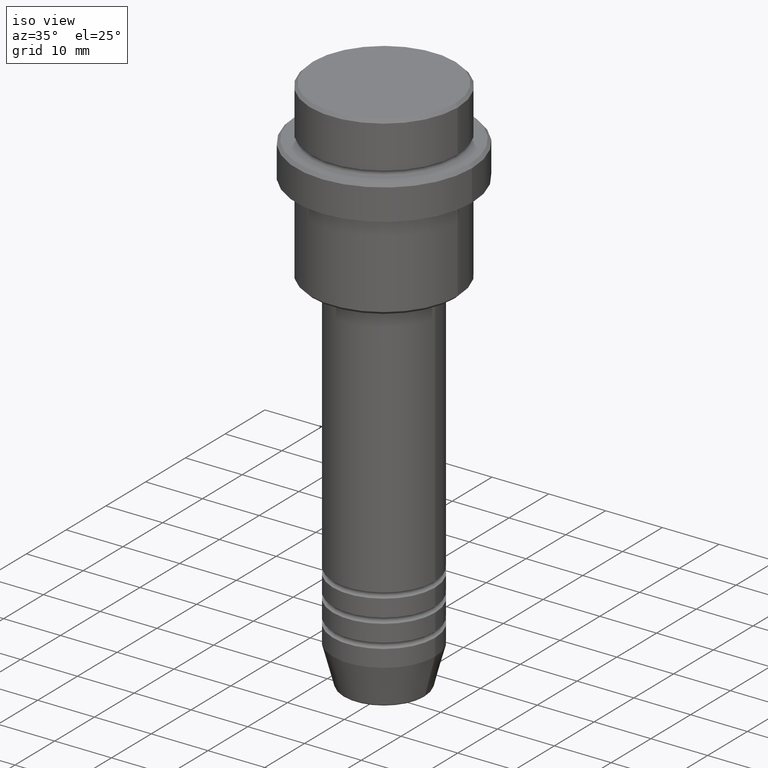
[diagram: clean part render]
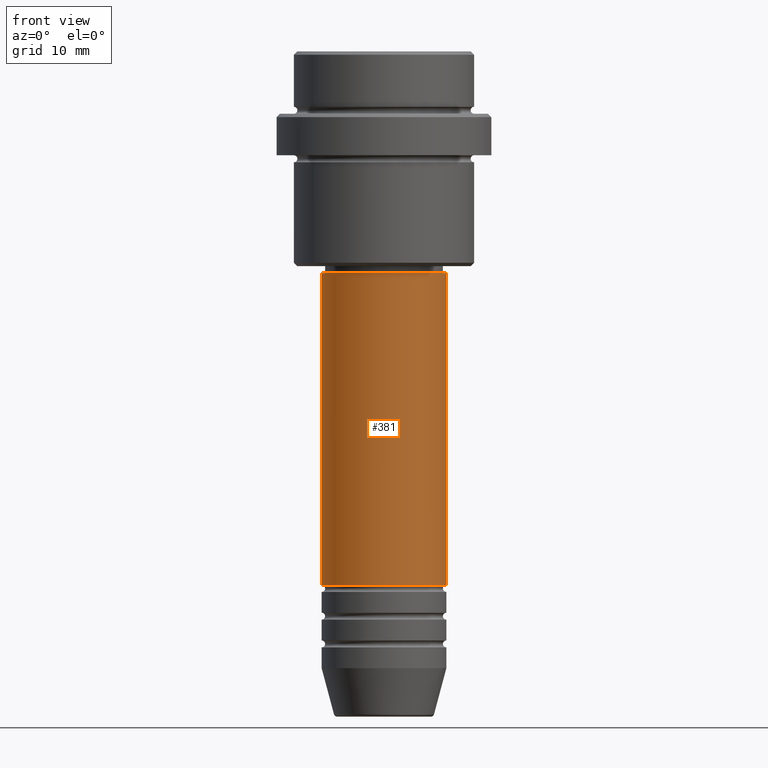
[diagram: tour spotlight — one face highlighted and labeled with its STEP entity id]
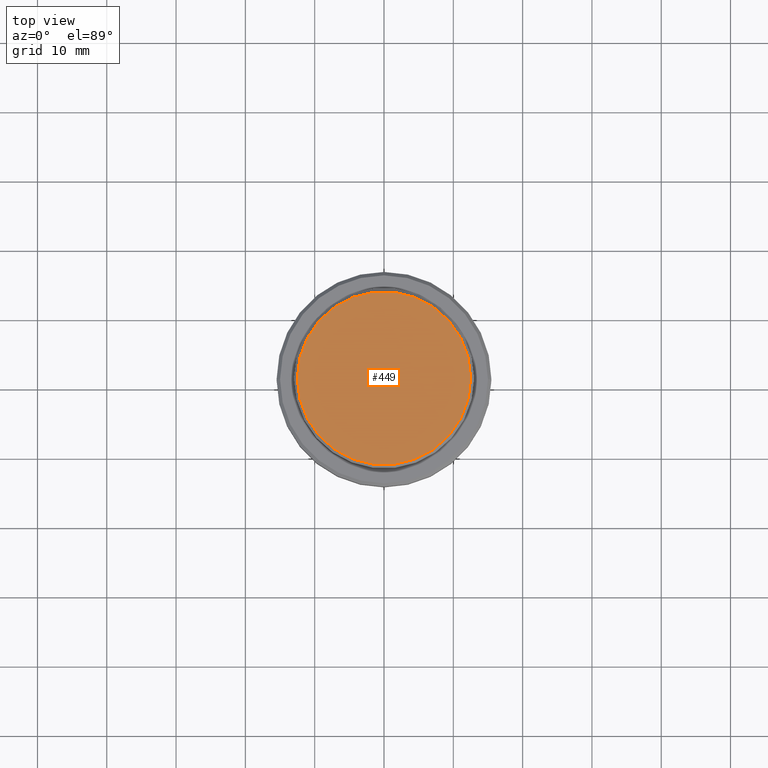
[diagram: tour spotlight — one face highlighted and labeled with its STEP entity id]
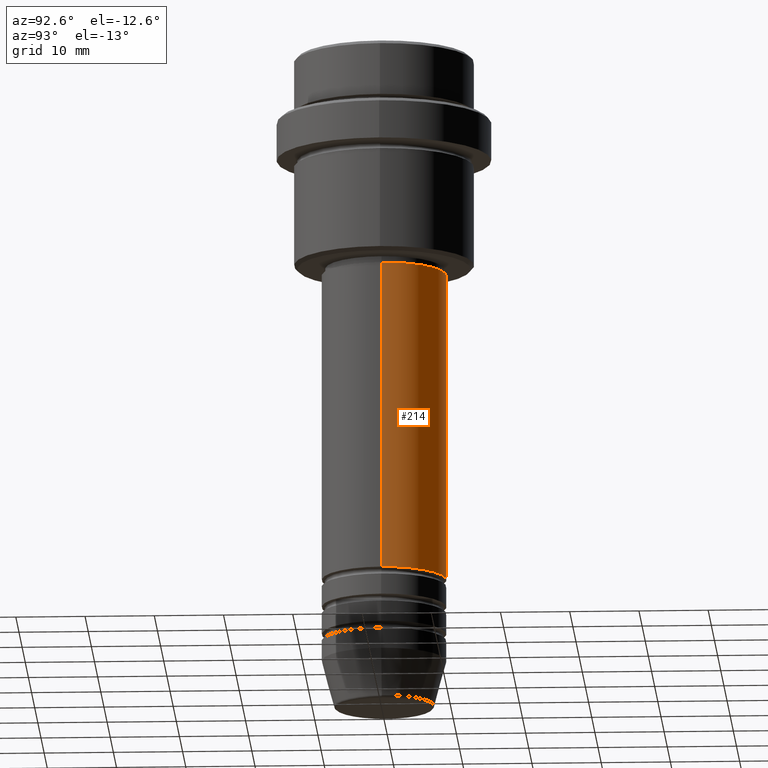
[diagram: tour spotlight — one face highlighted and labeled with its STEP entity id]
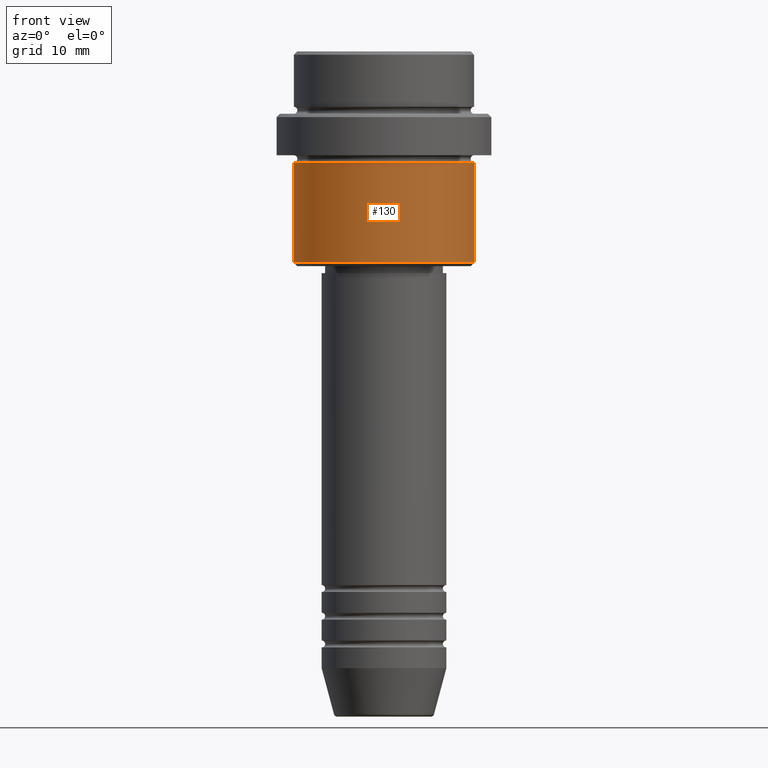
[diagram: tour spotlight — one face highlighted and labeled with its STEP entity id]
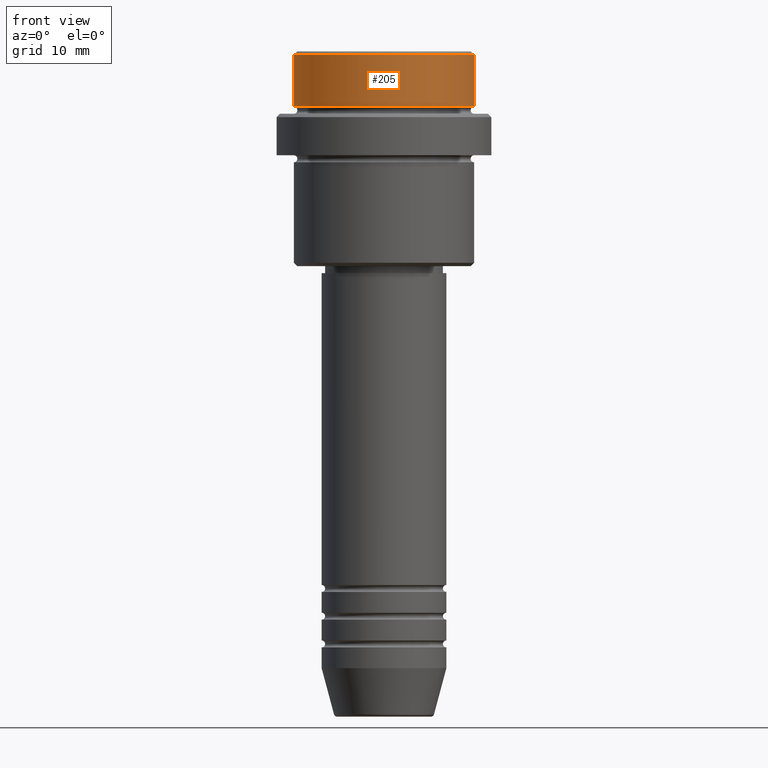
[diagram: tour spotlight — one face highlighted and labeled with its STEP entity id]
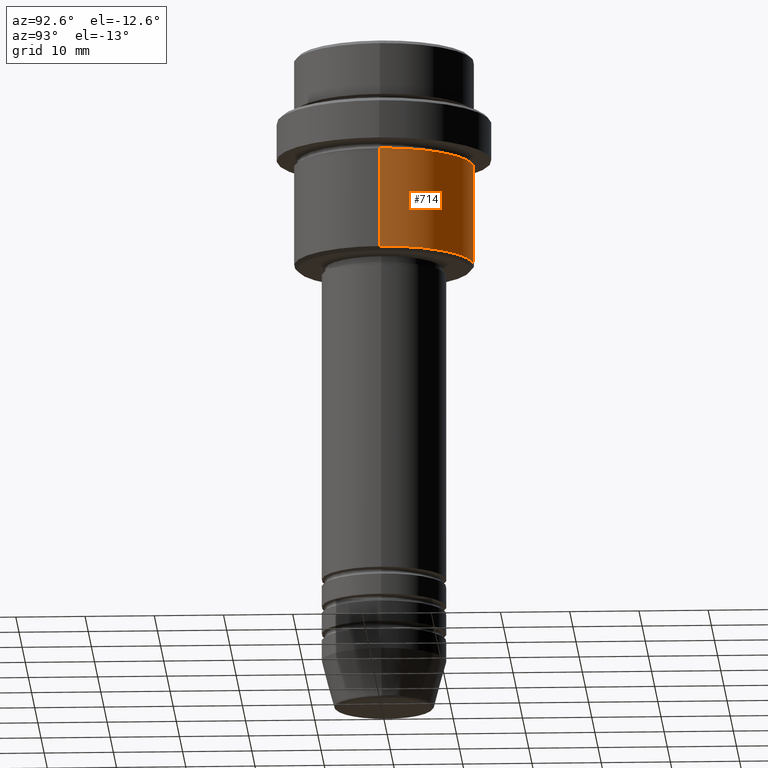
[diagram: tour spotlight — one face highlighted and labeled with its STEP entity id]
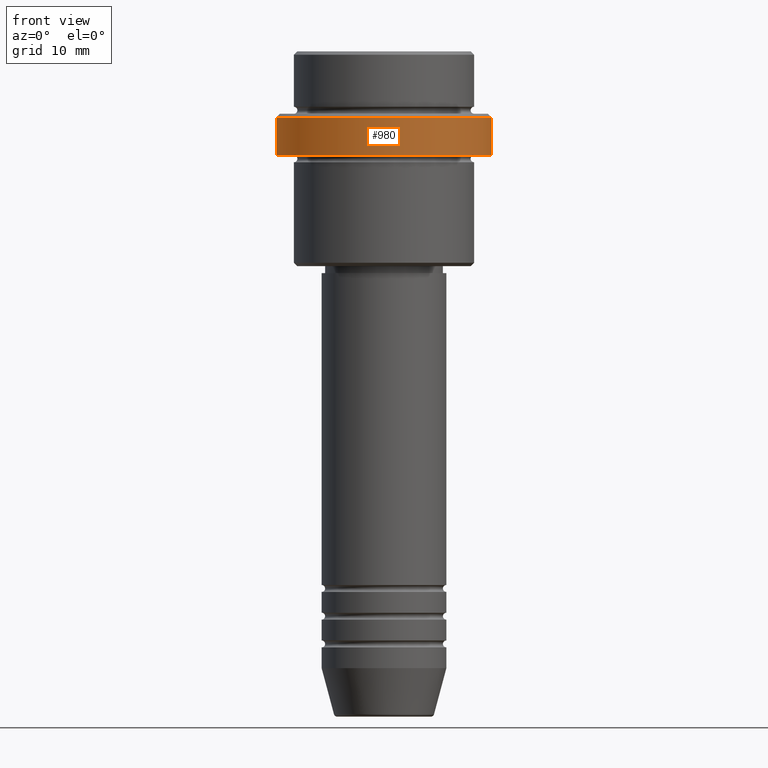
[diagram: tour spotlight — one face highlighted and labeled with its STEP entity id]
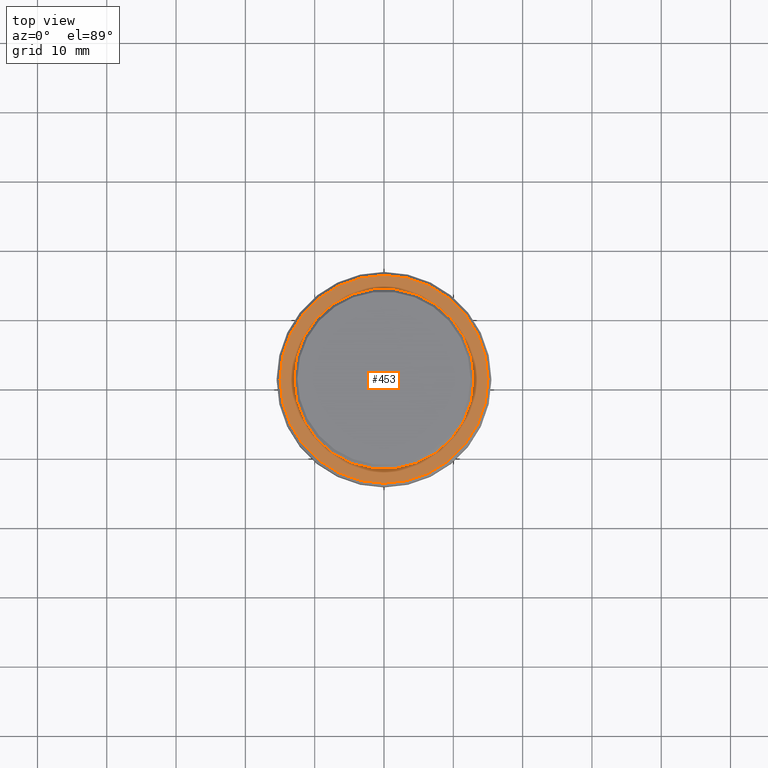
[diagram: tour spotlight — one face highlighted and labeled with its STEP entity id]
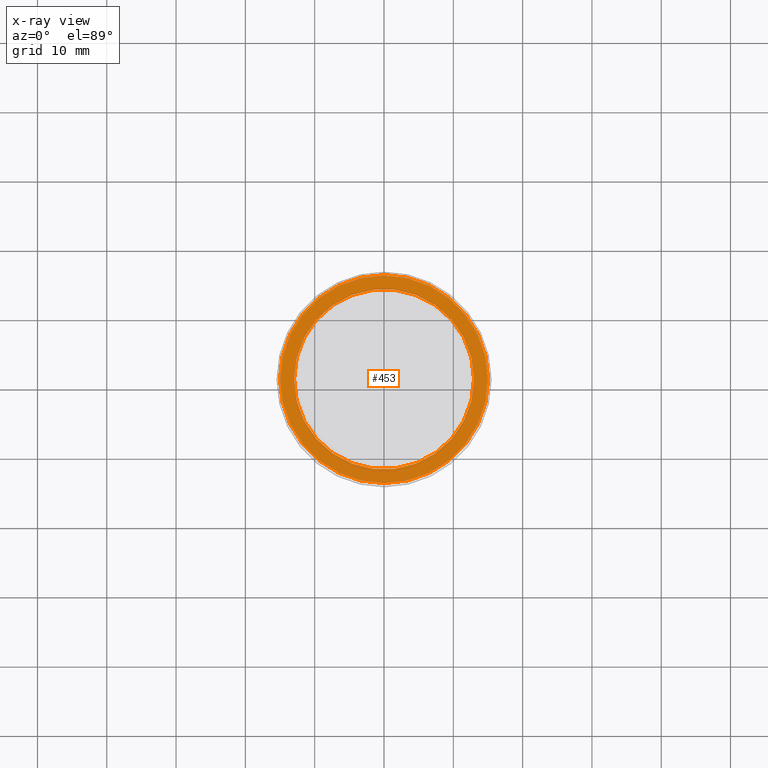
[diagram: x-ray of the same camera — body ghosted, this tour face saturated]
A machine part: a face-by-face anatomy tour. The part has 52 B-rep faces; the first image is the clean iso view, then the 8 largest visible faces are spotlighted one at a time (largest first), each with its STEP entity span.

Face 1 — front view, entity #381. In plain terms, the highlighted cylindrical surface (partial cylindrical patch) has radius 9 mm, axis along (-0, -0, 1).
Definition (entity closure, byte-faithful):
#68 = EDGE_LOOP ( 'NONE', ( #1381, #1315, #971, #1289 ) ) ;
#89 = CARTESIAN_POINT ( 'NONE',  ( -9.000000000000000000, 1.102182119232617714E-15, -76.99999999999987210 ) ) ;
#132 = DIRECTION ( 'NONE',  ( -0.000000000000000000, -0.000000000000000000, 1.000000000000000000 ) ) ;
#173 = EDGE_CURVE ( 'NONE', #368, #628, #1210, .T. ) ;
#186 = VECTOR ( 'NONE', #825, 1000.000000000000000 ) ;
#276 = CARTESIAN_POINT ( 'NONE',  ( 9.000000000000001776, 0.000000000000000000, 0.000000000000000000 ) ) ;
#363 = DIRECTION ( 'NONE',  ( -0.000000000000000000, -0.000000000000000000, 1.000000000000000000 ) ) ;
#368 = VERTEX_POINT ( 'NONE', #89 ) ;
#370 = EDGE_CURVE ( 'NONE', #554, #953, #1363, .T. ) ;
#381 = ADVANCED_FACE ( 'NONE', ( #724 ), #939, .T. ) ;
#404 = DIRECTION ( 'NONE',  ( -0.000000000000000000, -0.000000000000000000, 1.000000000000000000 ) ) ;
#465 = DIRECTION ( 'NONE',  ( -0.000000000000000000, -0.000000000000000000, 1.000000000000000000 ) ) ;
#473 = CARTESIAN_POINT ( 'NONE',  ( 0.000000000000000000, 0.000000000000000000, -76.99999999999987210 ) ) ;
#524 = CIRCLE ( 'NONE', #1110, 9.000000000000000000 ) ;
#554 = VERTEX_POINT ( 'NONE', #1016 ) ;
#588 = AXIS2_PLACEMENT_3D ( 'NONE', #1349, #465, #916 ) ;
#628 = VERTEX_POINT ( 'NONE', #1342 ) ;
#652 = CARTESIAN_POINT ( 'NONE',  ( -9.000000000000001776, 1.102182119232617911E-15, 0.000000000000000000 ) ) ;
#693 = CARTESIAN_POINT ( 'NONE',  ( 0.000000000000000000, 0.000000000000000000, 0.000000000000000000 ) ) ;
#715 = DIRECTION ( 'NONE',  ( 1.000000000000000000, 0.000000000000000000, 0.000000000000000000 ) ) ;
#724 = FACE_OUTER_BOUND ( 'NONE', #68, .T. ) ;
#778 = DIRECTION ( 'NONE',  ( 1.000000000000000000, 0.000000000000000000, 0.000000000000000000 ) ) ;
#825 = DIRECTION ( 'NONE',  ( -0.000000000000000000, -0.000000000000000000, 1.000000000000000000 ) ) ;
#916 = DIRECTION ( 'NONE',  ( 1.000000000000000000, 0.000000000000000000, 0.000000000000000000 ) ) ;
#918 = VECTOR ( 'NONE', #404, 1000.000000000000000 ) ;
#939 = CYLINDRICAL_SURFACE ( 'NONE', #986, 9.000000000000001776 ) ;
#953 = VERTEX_POINT ( 'NONE', #1098 ) ;
#971 = ORIENTED_EDGE ( 'NONE', *, *, #370, .T. ) ;
#986 = AXIS2_PLACEMENT_3D ( 'NONE', #693, #363, #715 ) ;
#1016 = CARTESIAN_POINT ( 'NONE',  ( 9.000000000000000000, 0.000000000000000000, -76.99999999999987210 ) ) ;
#1071 = EDGE_CURVE ( 'NONE', #368, #554, #524, .T. ) ;
#1098 = CARTESIAN_POINT ( 'NONE',  ( 9.000000000000001776, 0.000000000000000000, -31.99999999999997868 ) ) ;
#1109 = EDGE_CURVE ( 'NONE', #628, #953, #1222, .T. ) ;
#1110 = AXIS2_PLACEMENT_3D ( 'NONE', #473, #132, #778 ) ;
#1210 = LINE ( 'NONE', #652, #918 ) ;
#1222 = CIRCLE ( 'NONE', #588, 9.000000000000001776 ) ;
#1289 = ORIENTED_EDGE ( 'NONE', *, *, #1109, .F. ) ;
#1315 = ORIENTED_EDGE ( 'NONE', *, *, #1071, .T. ) ;
#1342 = CARTESIAN_POINT ( 'NONE',  ( -9.000000000000001776, 1.102182119232617911E-15, -31.99999999999997868 ) ) ;
#1349 = CARTESIAN_POINT ( 'NONE',  ( 0.000000000000000000, 0.000000000000000000, -31.99999999999997868 ) ) ;
#1363 = LINE ( 'NONE', #276, #186 ) ;
#1381 = ORIENTED_EDGE ( 'NONE', *, *, #173, .F. ) ;

Face 2 — top view, entity #449. In plain terms, the highlighted planar face has unit normal (0, -0, 1).
Definition (entity closure, byte-faithful):
#44 = ORIENTED_EDGE ( 'NONE', *, *, #1309, .T. ) ;
#48 = CARTESIAN_POINT ( 'NONE',  ( 0.000000000000000000, 0.000000000000000000, 0.000000000000000000 ) ) ;
#95 = AXIS2_PLACEMENT_3D ( 'NONE', #48, #391, #806 ) ;
#101 = PLANE ( 'NONE',  #95 ) ;
#126 = EDGE_CURVE ( 'NONE', #597, #198, #823, .T. ) ;
#190 = DIRECTION ( 'NONE',  ( -0.000000000000000000, -0.000000000000000000, 1.000000000000000000 ) ) ;
#198 = VERTEX_POINT ( 'NONE', #1416 ) ;
#202 = DIRECTION ( 'NONE',  ( 1.000000000000000000, 0.000000000000000000, 0.000000000000000000 ) ) ;
#327 = CARTESIAN_POINT ( 'NONE',  ( 0.000000000000000000, 0.000000000000000000, 0.000000000000000000 ) ) ;
#391 = DIRECTION ( 'NONE',  ( 0.000000000000000000, -0.000000000000000000, 1.000000000000000000 ) ) ;
#428 = DIRECTION ( 'NONE',  ( -0.000000000000000000, -0.000000000000000000, 1.000000000000000000 ) ) ;
#449 = ADVANCED_FACE ( 'NONE', ( #1393 ), #101, .T. ) ;
#536 = DIRECTION ( 'NONE',  ( 1.000000000000000000, 0.000000000000000000, 0.000000000000000000 ) ) ;
#562 = AXIS2_PLACEMENT_3D ( 'NONE', #844, #190, #202 ) ;
#590 = CIRCLE ( 'NONE', #974, 12.50000000000001243 ) ;
#597 = VERTEX_POINT ( 'NONE', #769 ) ;
#769 = CARTESIAN_POINT ( 'NONE',  ( -12.50000000000001243, 0.000000000000000000, 0.000000000000000000 ) ) ;
#806 = DIRECTION ( 'NONE',  ( 1.000000000000000000, 0.000000000000000000, 0.000000000000000000 ) ) ;
#823 = CIRCLE ( 'NONE', #562, 12.50000000000001243 ) ;
#844 = CARTESIAN_POINT ( 'NONE',  ( 0.000000000000000000, 0.000000000000000000, 0.000000000000000000 ) ) ;
#974 = AXIS2_PLACEMENT_3D ( 'NONE', #327, #428, #536 ) ;
#1200 = ORIENTED_EDGE ( 'NONE', *, *, #126, .T. ) ;
#1207 = EDGE_LOOP ( 'NONE', ( #1200, #44 ) ) ;
#1309 = EDGE_CURVE ( 'NONE', #198, #597, #590, .T. ) ;
#1393 = FACE_OUTER_BOUND ( 'NONE', #1207, .T. ) ;
#1416 = CARTESIAN_POINT ( 'NONE',  ( 12.50000000000001243, 1.561424668912876097E-15, 0.000000000000000000 ) ) ;

Face 3 — auxiliary view, entity #214. In plain terms, the highlighted cylindrical surface (partial cylindrical patch) has radius 9 mm, axis along (-0, -0, 1).
Definition (entity closure, byte-faithful):
#22 = CARTESIAN_POINT ( 'NONE',  ( 0.000000000000000000, 0.000000000000000000, -76.99999999999987210 ) ) ;
#89 = CARTESIAN_POINT ( 'NONE',  ( -9.000000000000000000, 1.102182119232617714E-15, -76.99999999999987210 ) ) ;
#103 = CIRCLE ( 'NONE', #123, 9.000000000000000000 ) ;
#123 = AXIS2_PLACEMENT_3D ( 'NONE', #22, #305, #741 ) ;
#124 = ORIENTED_EDGE ( 'NONE', *, *, #434, .F. ) ;
#151 = ORIENTED_EDGE ( 'NONE', *, *, #893, .T. ) ;
#173 = EDGE_CURVE ( 'NONE', #368, #628, #1210, .T. ) ;
#186 = VECTOR ( 'NONE', #825, 1000.000000000000000 ) ;
#214 = ADVANCED_FACE ( 'NONE', ( #750 ), #1198, .T. ) ;
#276 = CARTESIAN_POINT ( 'NONE',  ( 9.000000000000001776, 0.000000000000000000, 0.000000000000000000 ) ) ;
#305 = DIRECTION ( 'NONE',  ( -0.000000000000000000, -0.000000000000000000, 1.000000000000000000 ) ) ;
#368 = VERTEX_POINT ( 'NONE', #89 ) ;
#370 = EDGE_CURVE ( 'NONE', #554, #953, #1363, .T. ) ;
#387 = DIRECTION ( 'NONE',  ( 1.000000000000000000, 0.000000000000000000, 0.000000000000000000 ) ) ;
#404 = DIRECTION ( 'NONE',  ( -0.000000000000000000, -0.000000000000000000, 1.000000000000000000 ) ) ;
#421 = DIRECTION ( 'NONE',  ( -0.000000000000000000, -0.000000000000000000, 1.000000000000000000 ) ) ;
#434 = EDGE_CURVE ( 'NONE', #953, #628, #1080, .T. ) ;
#474 = AXIS2_PLACEMENT_3D ( 'NONE', #646, #421, #559 ) ;
#554 = VERTEX_POINT ( 'NONE', #1016 ) ;
#559 = DIRECTION ( 'NONE',  ( 1.000000000000000000, 0.000000000000000000, 0.000000000000000000 ) ) ;
#607 = CARTESIAN_POINT ( 'NONE',  ( 0.000000000000000000, 0.000000000000000000, -31.99999999999997868 ) ) ;
#628 = VERTEX_POINT ( 'NONE', #1342 ) ;
#646 = CARTESIAN_POINT ( 'NONE',  ( 0.000000000000000000, 0.000000000000000000, 0.000000000000000000 ) ) ;
#652 = CARTESIAN_POINT ( 'NONE',  ( -9.000000000000001776, 1.102182119232617911E-15, 0.000000000000000000 ) ) ;
#741 = DIRECTION ( 'NONE',  ( 1.000000000000000000, 0.000000000000000000, 0.000000000000000000 ) ) ;
#750 = FACE_OUTER_BOUND ( 'NONE', #1119, .T. ) ;
#767 = AXIS2_PLACEMENT_3D ( 'NONE', #607, #1387, #387 ) ;
#825 = DIRECTION ( 'NONE',  ( -0.000000000000000000, -0.000000000000000000, 1.000000000000000000 ) ) ;
#893 = EDGE_CURVE ( 'NONE', #554, #368, #103, .T. ) ;
#918 = VECTOR ( 'NONE', #404, 1000.000000000000000 ) ;
#953 = VERTEX_POINT ( 'NONE', #1098 ) ;
#959 = ORIENTED_EDGE ( 'NONE', *, *, #370, .F. ) ;
#966 = ORIENTED_EDGE ( 'NONE', *, *, #173, .T. ) ;
#1016 = CARTESIAN_POINT ( 'NONE',  ( 9.000000000000000000, 0.000000000000000000, -76.99999999999987210 ) ) ;
#1080 = CIRCLE ( 'NONE', #767, 9.000000000000001776 ) ;
#1098 = CARTESIAN_POINT ( 'NONE',  ( 9.000000000000001776, 0.000000000000000000, -31.99999999999997868 ) ) ;
#1119 = EDGE_LOOP ( 'NONE', ( #151, #966, #124, #959 ) ) ;
#1198 = CYLINDRICAL_SURFACE ( 'NONE', #474, 9.000000000000001776 ) ;
#1210 = LINE ( 'NONE', #652, #918 ) ;
#1342 = CARTESIAN_POINT ( 'NONE',  ( -9.000000000000001776, 1.102182119232617911E-15, -31.99999999999997868 ) ) ;
#1363 = LINE ( 'NONE', #276, #186 ) ;
#1387 = DIRECTION ( 'NONE',  ( -0.000000000000000000, -0.000000000000000000, 1.000000000000000000 ) ) ;

Face 4 — front view, entity #130. In plain terms, the highlighted cylindrical surface (partial cylindrical patch) has radius 13 mm, axis along (-0, -0, 1).
Definition (entity closure, byte-faithful):
#119 = DIRECTION ( 'NONE',  ( -1.000000000000000000, 0.000000000000000000, 0.000000000000000000 ) ) ;
#130 = ADVANCED_FACE ( 'NONE', ( #626 ), #1322, .T. ) ;
#131 = DIRECTION ( 'NONE',  ( -0.000000000000000000, -0.000000000000000000, 1.000000000000000000 ) ) ;
#209 = VECTOR ( 'NONE', #336, 1000.000000000000000 ) ;
#221 = DIRECTION ( 'NONE',  ( 1.000000000000000000, 0.000000000000000000, 0.000000000000000000 ) ) ;
#225 = CARTESIAN_POINT ( 'NONE',  ( -13.00000000000000000, 1.592040838891559095E-15, 0.000000000000000000 ) ) ;
#251 = AXIS2_PLACEMENT_3D ( 'NONE', #970, #1295, #221 ) ;
#264 = CARTESIAN_POINT ( 'NONE',  ( -13.00000000000000000, 1.592040838891559095E-15, -16.00000000000000000 ) ) ;
#318 = CARTESIAN_POINT ( 'NONE',  ( 13.00000000000000000, 0.000000000000000000, -16.00000000000000000 ) ) ;
#323 = CARTESIAN_POINT ( 'NONE',  ( -13.00000000000000000, 1.592040838891559095E-15, -30.49999999999999645 ) ) ;
#336 = DIRECTION ( 'NONE',  ( -0.000000000000000000, -0.000000000000000000, 1.000000000000000000 ) ) ;
#412 = VERTEX_POINT ( 'NONE', #487 ) ;
#487 = CARTESIAN_POINT ( 'NONE',  ( 13.00000000000000000, 0.000000000000000000, -30.49999999999999645 ) ) ;
#526 = CARTESIAN_POINT ( 'NONE',  ( 0.000000000000000000, 0.000000000000000000, -30.49999999999999645 ) ) ;
#598 = ORIENTED_EDGE ( 'NONE', *, *, #967, .F. ) ;
#626 = FACE_OUTER_BOUND ( 'NONE', #985, .T. ) ;
#638 = CIRCLE ( 'NONE', #1015, 13.00000000000000000 ) ;
#705 = CIRCLE ( 'NONE', #857, 13.00000000000000000 ) ;
#775 = CARTESIAN_POINT ( 'NONE',  ( 0.000000000000000000, 0.000000000000000000, -16.00000000000000000 ) ) ;
#780 = ORIENTED_EDGE ( 'NONE', *, *, #1362, .T. ) ;
#857 = AXIS2_PLACEMENT_3D ( 'NONE', #775, #131, #1257 ) ;
#897 = VECTOR ( 'NONE', #1029, 1000.000000000000000 ) ;
#900 = CARTESIAN_POINT ( 'NONE',  ( 13.00000000000000000, 0.000000000000000000, 0.000000000000000000 ) ) ;
#936 = VERTEX_POINT ( 'NONE', #318 ) ;
#967 = EDGE_CURVE ( 'NONE', #1383, #1024, #1217, .T. ) ;
#970 = CARTESIAN_POINT ( 'NONE',  ( 0.000000000000000000, 0.000000000000000000, 0.000000000000000000 ) ) ;
#985 = EDGE_LOOP ( 'NONE', ( #598, #780, #1130, #1172 ) ) ;
#1015 = AXIS2_PLACEMENT_3D ( 'NONE', #526, #1214, #119 ) ;
#1023 = LINE ( 'NONE', #900, #897 ) ;
#1024 = VERTEX_POINT ( 'NONE', #264 ) ;
#1029 = DIRECTION ( 'NONE',  ( -0.000000000000000000, -0.000000000000000000, 1.000000000000000000 ) ) ;
#1054 = EDGE_CURVE ( 'NONE', #412, #936, #1023, .T. ) ;
#1130 = ORIENTED_EDGE ( 'NONE', *, *, #1054, .T. ) ;
#1172 = ORIENTED_EDGE ( 'NONE', *, *, #1407, .F. ) ;
#1214 = DIRECTION ( 'NONE',  ( -0.000000000000000000, -0.000000000000000000, 1.000000000000000000 ) ) ;
#1217 = LINE ( 'NONE', #225, #209 ) ;
#1257 = DIRECTION ( 'NONE',  ( 1.000000000000000000, 0.000000000000000000, 0.000000000000000000 ) ) ;
#1295 = DIRECTION ( 'NONE',  ( -0.000000000000000000, -0.000000000000000000, 1.000000000000000000 ) ) ;
#1322 = CYLINDRICAL_SURFACE ( 'NONE', #251, 13.00000000000000000 ) ;
#1362 = EDGE_CURVE ( 'NONE', #1383, #412, #638, .T. ) ;
#1383 = VERTEX_POINT ( 'NONE', #323 ) ;
#1407 = EDGE_CURVE ( 'NONE', #1024, #936, #705, .T. ) ;

Face 5 — front view, entity #205. In plain terms, the highlighted cylindrical surface (partial cylindrical patch) has radius 13 mm, axis along (-0, -0, 1).
Definition (entity closure, byte-faithful):
#11 = VECTOR ( 'NONE', #988, 1000.000000000000000 ) ;
#69 = VECTOR ( 'NONE', #885, 1000.000000000000000 ) ;
#79 = CIRCLE ( 'NONE', #873, 12.99999999999999822 ) ;
#81 = CARTESIAN_POINT ( 'NONE',  ( 12.99999999999999822, 0.000000000000000000, -0.5000000000000038858 ) ) ;
#111 = EDGE_CURVE ( 'NONE', #445, #1072, #797, .T. ) ;
#153 = LINE ( 'NONE', #573, #69 ) ;
#170 = DIRECTION ( 'NONE',  ( 1.000000000000000000, 0.000000000000000000, 0.000000000000000000 ) ) ;
#183 = CARTESIAN_POINT ( 'NONE',  ( 0.000000000000000000, 0.000000000000000000, -0.5000000000000038858 ) ) ;
#205 = ADVANCED_FACE ( 'NONE', ( #1184 ), #1088, .T. ) ;
#270 = CARTESIAN_POINT ( 'NONE',  ( 0.000000000000000000, 0.000000000000000000, -7.999999999999998224 ) ) ;
#306 = EDGE_LOOP ( 'NONE', ( #1158, #863, #1003, #1283 ) ) ;
#338 = EDGE_CURVE ( 'NONE', #1276, #1116, #79, .T. ) ;
#416 = DIRECTION ( 'NONE',  ( -0.000000000000000000, -0.000000000000000000, 1.000000000000000000 ) ) ;
#445 = VERTEX_POINT ( 'NONE', #81 ) ;
#508 = DIRECTION ( 'NONE',  ( 1.000000000000000000, 0.000000000000000000, 0.000000000000000000 ) ) ;
#523 = AXIS2_PLACEMENT_3D ( 'NONE', #979, #416, #1095 ) ;
#564 = CARTESIAN_POINT ( 'NONE',  ( -12.99999999999999822, 1.592040838891558898E-15, -0.5000000000000038858 ) ) ;
#573 = CARTESIAN_POINT ( 'NONE',  ( 12.99999999999999822, 0.000000000000000000, 0.000000000000000000 ) ) ;
#575 = EDGE_CURVE ( 'NONE', #1116, #445, #153, .T. ) ;
#613 = DIRECTION ( 'NONE',  ( 0.000000000000000000, 0.000000000000000000, -1.000000000000000000 ) ) ;
#701 = DIRECTION ( 'NONE',  ( -0.000000000000000000, -0.000000000000000000, 1.000000000000000000 ) ) ;
#797 = CIRCLE ( 'NONE', #1357, 12.99999999999999822 ) ;
#863 = ORIENTED_EDGE ( 'NONE', *, *, #338, .T. ) ;
#873 = AXIS2_PLACEMENT_3D ( 'NONE', #270, #701, #170 ) ;
#885 = DIRECTION ( 'NONE',  ( -0.000000000000000000, -0.000000000000000000, 1.000000000000000000 ) ) ;
#931 = EDGE_CURVE ( 'NONE', #1276, #1072, #983, .T. ) ;
#979 = CARTESIAN_POINT ( 'NONE',  ( 0.000000000000000000, 0.000000000000000000, 0.000000000000000000 ) ) ;
#983 = LINE ( 'NONE', #1312, #11 ) ;
#988 = DIRECTION ( 'NONE',  ( -0.000000000000000000, -0.000000000000000000, 1.000000000000000000 ) ) ;
#1003 = ORIENTED_EDGE ( 'NONE', *, *, #575, .T. ) ;
#1072 = VERTEX_POINT ( 'NONE', #564 ) ;
#1088 = CYLINDRICAL_SURFACE ( 'NONE', #523, 12.99999999999999822 ) ;
#1095 = DIRECTION ( 'NONE',  ( 1.000000000000000000, 0.000000000000000000, 0.000000000000000000 ) ) ;
#1116 = VERTEX_POINT ( 'NONE', #1251 ) ;
#1158 = ORIENTED_EDGE ( 'NONE', *, *, #931, .F. ) ;
#1184 = FACE_OUTER_BOUND ( 'NONE', #306, .T. ) ;
#1203 = CARTESIAN_POINT ( 'NONE',  ( -12.99999999999999822, 1.592040838891558898E-15, -7.999999999999998224 ) ) ;
#1251 = CARTESIAN_POINT ( 'NONE',  ( 12.99999999999999822, 0.000000000000000000, -7.999999999999998224 ) ) ;
#1276 = VERTEX_POINT ( 'NONE', #1203 ) ;
#1283 = ORIENTED_EDGE ( 'NONE', *, *, #111, .T. ) ;
#1312 = CARTESIAN_POINT ( 'NONE',  ( -12.99999999999999822, 1.592040838891558898E-15, 0.000000000000000000 ) ) ;
#1357 = AXIS2_PLACEMENT_3D ( 'NONE', #183, #613, #508 ) ;

Face 6 — auxiliary view, entity #714. In plain terms, the highlighted cylindrical surface (partial cylindrical patch) has radius 13 mm, axis along (-0, -0, 1).
Definition (entity closure, byte-faithful):
#99 = ORIENTED_EDGE ( 'NONE', *, *, #207, .F. ) ;
#109 = DIRECTION ( 'NONE',  ( -0.000000000000000000, -0.000000000000000000, 1.000000000000000000 ) ) ;
#110 = CARTESIAN_POINT ( 'NONE',  ( 0.000000000000000000, 0.000000000000000000, -16.00000000000000000 ) ) ;
#118 = CIRCLE ( 'NONE', #1196, 13.00000000000000000 ) ;
#207 = EDGE_CURVE ( 'NONE', #936, #1024, #118, .T. ) ;
#209 = VECTOR ( 'NONE', #336, 1000.000000000000000 ) ;
#210 = CARTESIAN_POINT ( 'NONE',  ( 0.000000000000000000, 0.000000000000000000, -30.49999999999999645 ) ) ;
#225 = CARTESIAN_POINT ( 'NONE',  ( -13.00000000000000000, 1.592040838891559095E-15, 0.000000000000000000 ) ) ;
#264 = CARTESIAN_POINT ( 'NONE',  ( -13.00000000000000000, 1.592040838891559095E-15, -16.00000000000000000 ) ) ;
#281 = FACE_OUTER_BOUND ( 'NONE', #522, .T. ) ;
#318 = CARTESIAN_POINT ( 'NONE',  ( 13.00000000000000000, 0.000000000000000000, -16.00000000000000000 ) ) ;
#323 = CARTESIAN_POINT ( 'NONE',  ( -13.00000000000000000, 1.592040838891559095E-15, -30.49999999999999645 ) ) ;
#336 = DIRECTION ( 'NONE',  ( -0.000000000000000000, -0.000000000000000000, 1.000000000000000000 ) ) ;
#412 = VERTEX_POINT ( 'NONE', #487 ) ;
#461 = DIRECTION ( 'NONE',  ( 1.000000000000000000, 0.000000000000000000, 0.000000000000000000 ) ) ;
#487 = CARTESIAN_POINT ( 'NONE',  ( 13.00000000000000000, 0.000000000000000000, -30.49999999999999645 ) ) ;
#503 = CARTESIAN_POINT ( 'NONE',  ( 0.000000000000000000, 0.000000000000000000, 0.000000000000000000 ) ) ;
#522 = EDGE_LOOP ( 'NONE', ( #1090, #813, #99, #854 ) ) ;
#714 = ADVANCED_FACE ( 'NONE', ( #281 ), #1058, .T. ) ;
#813 = ORIENTED_EDGE ( 'NONE', *, *, #967, .T. ) ;
#854 = ORIENTED_EDGE ( 'NONE', *, *, #1054, .F. ) ;
#866 = DIRECTION ( 'NONE',  ( -0.000000000000000000, -0.000000000000000000, 1.000000000000000000 ) ) ;
#876 = AXIS2_PLACEMENT_3D ( 'NONE', #210, #109, #1105 ) ;
#897 = VECTOR ( 'NONE', #1029, 1000.000000000000000 ) ;
#900 = CARTESIAN_POINT ( 'NONE',  ( 13.00000000000000000, 0.000000000000000000, 0.000000000000000000 ) ) ;
#921 = EDGE_CURVE ( 'NONE', #412, #1383, #972, .T. ) ;
#936 = VERTEX_POINT ( 'NONE', #318 ) ;
#967 = EDGE_CURVE ( 'NONE', #1383, #1024, #1217, .T. ) ;
#972 = CIRCLE ( 'NONE', #876, 13.00000000000000000 ) ;
#977 = AXIS2_PLACEMENT_3D ( 'NONE', #503, #1391, #461 ) ;
#1023 = LINE ( 'NONE', #900, #897 ) ;
#1024 = VERTEX_POINT ( 'NONE', #264 ) ;
#1029 = DIRECTION ( 'NONE',  ( -0.000000000000000000, -0.000000000000000000, 1.000000000000000000 ) ) ;
#1054 = EDGE_CURVE ( 'NONE', #412, #936, #1023, .T. ) ;
#1058 = CYLINDRICAL_SURFACE ( 'NONE', #977, 13.00000000000000000 ) ;
#1090 = ORIENTED_EDGE ( 'NONE', *, *, #921, .T. ) ;
#1105 = DIRECTION ( 'NONE',  ( -1.000000000000000000, 0.000000000000000000, 0.000000000000000000 ) ) ;
#1196 = AXIS2_PLACEMENT_3D ( 'NONE', #110, #866, #1307 ) ;
#1217 = LINE ( 'NONE', #225, #209 ) ;
#1307 = DIRECTION ( 'NONE',  ( 1.000000000000000000, 0.000000000000000000, 0.000000000000000000 ) ) ;
#1383 = VERTEX_POINT ( 'NONE', #323 ) ;
#1391 = DIRECTION ( 'NONE',  ( -0.000000000000000000, -0.000000000000000000, 1.000000000000000000 ) ) ;

Face 7 — front view, entity #980. In plain terms, the highlighted cylindrical surface (partial cylindrical patch) has radius 15.5 mm, axis along (-0, -0, 1).
Definition (entity closure, byte-faithful):
#36 = EDGE_CURVE ( 'NONE', #623, #1030, #380, .T. ) ;
#46 = VERTEX_POINT ( 'NONE', #67 ) ;
#47 = EDGE_CURVE ( 'NONE', #623, #1193, #52, .T. ) ;
#52 = CIRCLE ( 'NONE', #77, 15.50000000000000000 ) ;
#55 = CIRCLE ( 'NONE', #924, 15.50000000000000000 ) ;
#67 = CARTESIAN_POINT ( 'NONE',  ( 15.50000000000000000, 0.000000000000000000, -9.499999999999998224 ) ) ;
#75 = DIRECTION ( 'NONE',  ( 1.000000000000000000, 0.000000000000000000, 0.000000000000000000 ) ) ;
#77 = AXIS2_PLACEMENT_3D ( 'NONE', #1261, #703, #75 ) ;
#92 = DIRECTION ( 'NONE',  ( -0.000000000000000000, -0.000000000000000000, 1.000000000000000000 ) ) ;
#162 = FACE_OUTER_BOUND ( 'NONE', #541, .T. ) ;
#232 = CARTESIAN_POINT ( 'NONE',  ( -15.50000000000000000, 1.898202538678397557E-15, -15.00000000000000000 ) ) ;
#310 = DIRECTION ( 'NONE',  ( 0.000000000000000000, 0.000000000000000000, -1.000000000000000000 ) ) ;
#349 = DIRECTION ( 'NONE',  ( 1.000000000000000000, 0.000000000000000000, 0.000000000000000000 ) ) ;
#364 = CYLINDRICAL_SURFACE ( 'NONE', #991, 15.50000000000000000 ) ;
#377 = VECTOR ( 'NONE', #92, 1000.000000000000000 ) ;
#380 = LINE ( 'NONE', #1170, #377 ) ;
#441 = CARTESIAN_POINT ( 'NONE',  ( 0.000000000000000000, 0.000000000000000000, 0.000000000000000000 ) ) ;
#488 = CARTESIAN_POINT ( 'NONE',  ( 15.50000000000000000, 0.000000000000000000, -15.00000000000000000 ) ) ;
#504 = VECTOR ( 'NONE', #1197, 1000.000000000000000 ) ;
#541 = EDGE_LOOP ( 'NONE', ( #737, #960, #1333, #1402 ) ) ;
#623 = VERTEX_POINT ( 'NONE', #232 ) ;
#658 = LINE ( 'NONE', #1002, #504 ) ;
#703 = DIRECTION ( 'NONE',  ( -0.000000000000000000, -0.000000000000000000, 1.000000000000000000 ) ) ;
#737 = ORIENTED_EDGE ( 'NONE', *, *, #36, .F. ) ;
#749 = DIRECTION ( 'NONE',  ( 1.000000000000000000, 0.000000000000000000, 0.000000000000000000 ) ) ;
#809 = DIRECTION ( 'NONE',  ( -0.000000000000000000, -0.000000000000000000, 1.000000000000000000 ) ) ;
#870 = EDGE_CURVE ( 'NONE', #1193, #46, #658, .T. ) ;
#912 = EDGE_CURVE ( 'NONE', #46, #1030, #55, .T. ) ;
#924 = AXIS2_PLACEMENT_3D ( 'NONE', #1414, #310, #749 ) ;
#960 = ORIENTED_EDGE ( 'NONE', *, *, #47, .T. ) ;
#980 = ADVANCED_FACE ( 'NONE', ( #162 ), #364, .T. ) ;
#991 = AXIS2_PLACEMENT_3D ( 'NONE', #441, #809, #349 ) ;
#1002 = CARTESIAN_POINT ( 'NONE',  ( 15.50000000000000000, 0.000000000000000000, 0.000000000000000000 ) ) ;
#1030 = VERTEX_POINT ( 'NONE', #1335 ) ;
#1170 = CARTESIAN_POINT ( 'NONE',  ( -15.50000000000000000, 1.898202538678397557E-15, 0.000000000000000000 ) ) ;
#1193 = VERTEX_POINT ( 'NONE', #488 ) ;
#1197 = DIRECTION ( 'NONE',  ( -0.000000000000000000, -0.000000000000000000, 1.000000000000000000 ) ) ;
#1261 = CARTESIAN_POINT ( 'NONE',  ( 0.000000000000000000, 0.000000000000000000, -15.00000000000000000 ) ) ;
#1333 = ORIENTED_EDGE ( 'NONE', *, *, #870, .T. ) ;
#1335 = CARTESIAN_POINT ( 'NONE',  ( -15.50000000000000000, 1.898202538678397557E-15, -9.499999999999998224 ) ) ;
#1402 = ORIENTED_EDGE ( 'NONE', *, *, #912, .T. ) ;
#1414 = CARTESIAN_POINT ( 'NONE',  ( 0.000000000000000000, 0.000000000000000000, -9.499999999999998224 ) ) ;

Face 8 — top view, entity #453. An x-ray twin of the same camera follows (body ghosted, this face saturated) — the face is partly hidden behind the body. In plain terms, the highlighted planar face has unit normal (0, -0, 1).
Definition (entity closure, byte-faithful):
#43 = CARTESIAN_POINT ( 'NONE',  ( 0.000000000000000000, 0.000000000000000000, -9.000000000000000000 ) ) ;
#54 = EDGE_LOOP ( 'NONE', ( #1351, #98 ) ) ;
#61 = DIRECTION ( 'NONE',  ( -0.000000000000000000, -0.000000000000000000, 1.000000000000000000 ) ) ;
#74 = EDGE_CURVE ( 'NONE', #964, #766, #223, .T. ) ;
#91 = CARTESIAN_POINT ( 'NONE',  ( -12.99999999999999467, 1.592040838891558504E-15, -9.000000000000000000 ) ) ;
#98 = ORIENTED_EDGE ( 'NONE', *, *, #901, .T. ) ;
#178 = CIRCLE ( 'NONE', #350, 12.99999999999999467 ) ;
#223 = CIRCLE ( 'NONE', #1218, 15.00000000000001421 ) ;
#231 = EDGE_CURVE ( 'NONE', #1151, #279, #585, .T. ) ;
#254 = CIRCLE ( 'NONE', #655, 15.00000000000001421 ) ;
#279 = VERTEX_POINT ( 'NONE', #91 ) ;
#350 = AXIS2_PLACEMENT_3D ( 'NONE', #440, #891, #1334 ) ;
#397 = FACE_OUTER_BOUND ( 'NONE', #54, .T. ) ;
#440 = CARTESIAN_POINT ( 'NONE',  ( 0.000000000000000000, 0.000000000000000000, -9.000000000000000000 ) ) ;
#453 = ADVANCED_FACE ( 'NONE', ( #397, #1255 ), #1164, .T. ) ;
#466 = DIRECTION ( 'NONE',  ( 0.000000000000000000, 0.000000000000000000, -1.000000000000000000 ) ) ;
#528 = DIRECTION ( 'NONE',  ( 1.000000000000000000, 0.000000000000000000, 0.000000000000000000 ) ) ;
#538 = DIRECTION ( 'NONE',  ( -0.000000000000000000, -0.000000000000000000, 1.000000000000000000 ) ) ;
#585 = CIRCLE ( 'NONE', #1405, 12.99999999999999467 ) ;
#612 = EDGE_CURVE ( 'NONE', #279, #1151, #178, .T. ) ;
#622 = DIRECTION ( 'NONE',  ( 1.000000000000000000, 0.000000000000000000, 0.000000000000000000 ) ) ;
#655 = AXIS2_PLACEMENT_3D ( 'NONE', #880, #538, #528 ) ;
#720 = DIRECTION ( 'NONE',  ( 0.000000000000000000, -0.000000000000000000, 1.000000000000000000 ) ) ;
#739 = ORIENTED_EDGE ( 'NONE', *, *, #231, .T. ) ;
#766 = VERTEX_POINT ( 'NONE', #1413 ) ;
#829 = CARTESIAN_POINT ( 'NONE',  ( 0.000000000000000000, 0.000000000000000000, -9.000000000000000000 ) ) ;
#880 = CARTESIAN_POINT ( 'NONE',  ( 0.000000000000000000, 0.000000000000000000, -9.000000000000000000 ) ) ;
#891 = DIRECTION ( 'NONE',  ( 0.000000000000000000, 0.000000000000000000, -1.000000000000000000 ) ) ;
#901 = EDGE_CURVE ( 'NONE', #766, #964, #254, .T. ) ;
#914 = AXIS2_PLACEMENT_3D ( 'NONE', #1282, #720, #622 ) ;
#917 = DIRECTION ( 'NONE',  ( 1.000000000000000000, 0.000000000000000000, 0.000000000000000000 ) ) ;
#964 = VERTEX_POINT ( 'NONE', #1329 ) ;
#973 = EDGE_LOOP ( 'NONE', ( #739, #1096 ) ) ;
#1096 = ORIENTED_EDGE ( 'NONE', *, *, #612, .T. ) ;
#1151 = VERTEX_POINT ( 'NONE', #1377 ) ;
#1164 = PLANE ( 'NONE',  #914 ) ;
#1218 = AXIS2_PLACEMENT_3D ( 'NONE', #829, #61, #1274 ) ;
#1255 = FACE_BOUND ( 'NONE', #973, .T. ) ;
#1274 = DIRECTION ( 'NONE',  ( 1.000000000000000000, 0.000000000000000000, 0.000000000000000000 ) ) ;
#1282 = CARTESIAN_POINT ( 'NONE',  ( 0.000000000000000000, 12.49999999999999289, -9.000000000000000000 ) ) ;
#1329 = CARTESIAN_POINT ( 'NONE',  ( -15.00000000000001421, 0.000000000000000000, -9.000000000000000000 ) ) ;
#1334 = DIRECTION ( 'NONE',  ( 1.000000000000000000, 0.000000000000000000, 0.000000000000000000 ) ) ;
#1351 = ORIENTED_EDGE ( 'NONE', *, *, #74, .T. ) ;
#1377 = CARTESIAN_POINT ( 'NONE',  ( 12.99999999999999467, 0.000000000000000000, -9.000000000000000000 ) ) ;
#1405 = AXIS2_PLACEMENT_3D ( 'NONE', #43, #466, #917 ) ;
#1413 = CARTESIAN_POINT ( 'NONE',  ( 15.00000000000001421, 1.867586368699714559E-15, -9.000000000000000000 ) ) ;